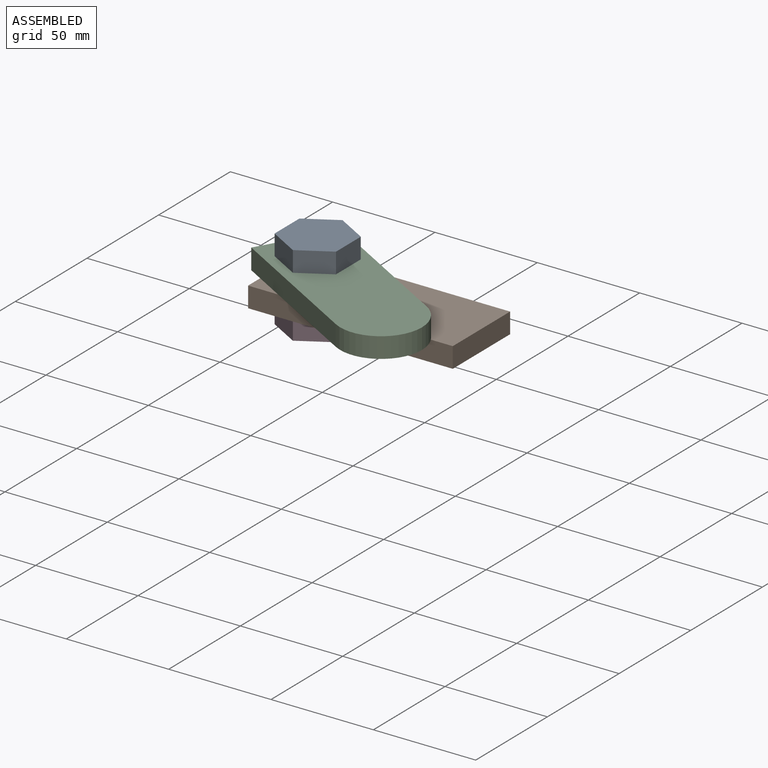
[diagram: assembled view]
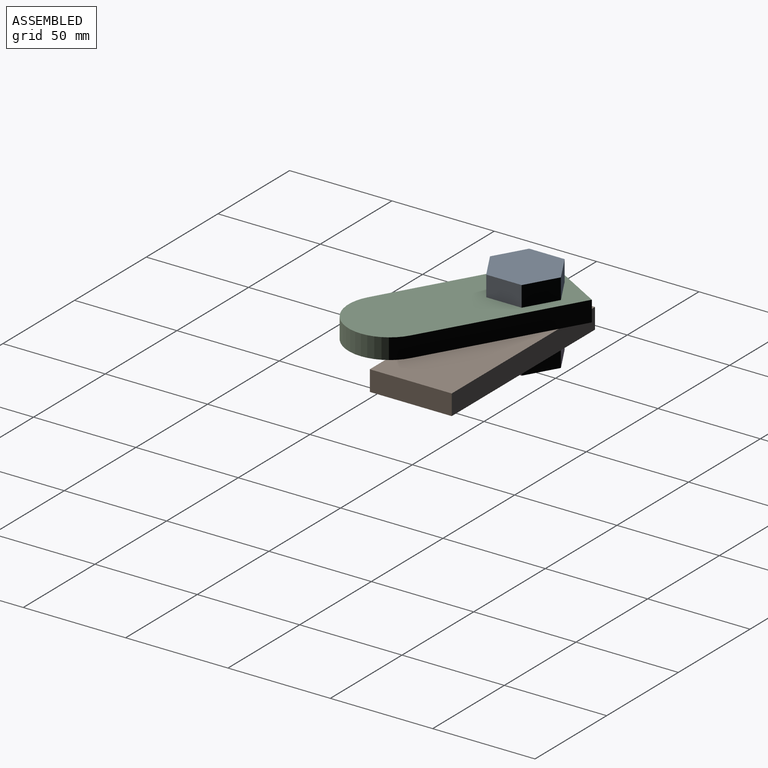
[diagram: assembled view, second angle]
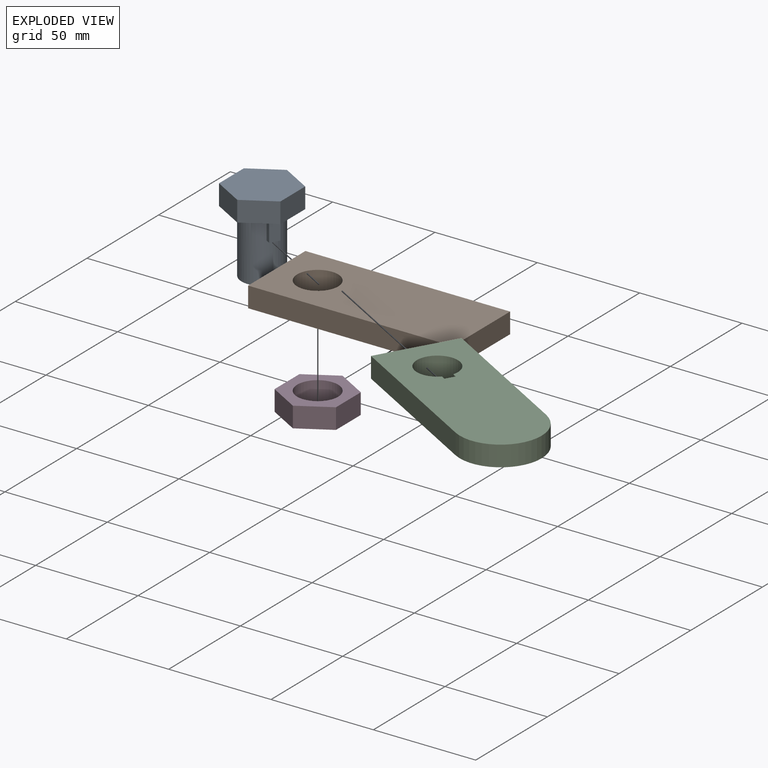
[diagram: exploded view]
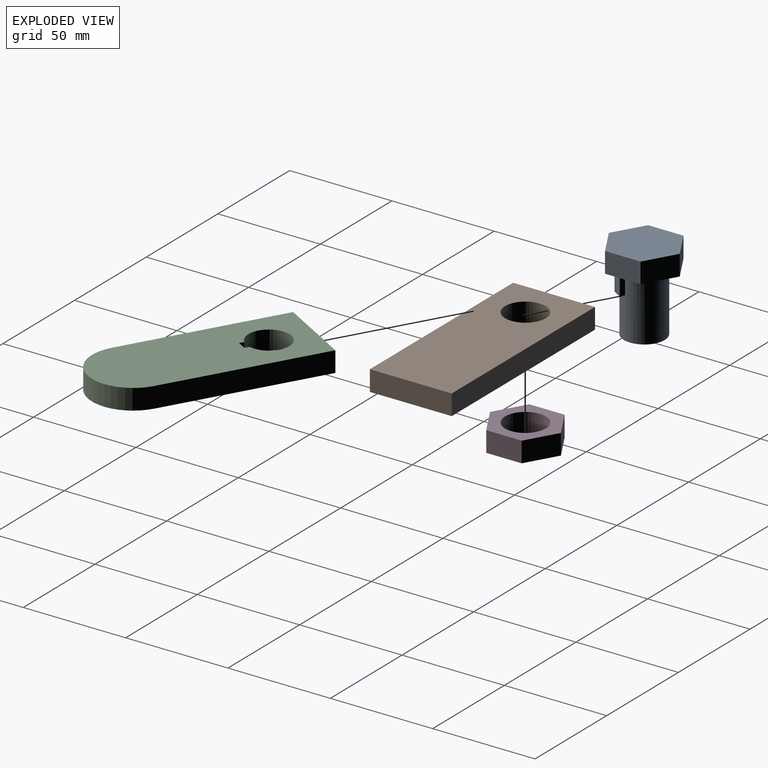
[diagram: exploded view, second angle]
ASSEMBLY  parts=4 mates=3
PART A: 14 faces, bbox 34.6x30x40 mm
  f0: cylinder r=10mm len=30mm, axis (0,0,1), area 1834.4mm2, adj f1,f9,f10,f11,f13
  f1: plane 20x20mm, normal (0,0,-1), area 314.2mm2, adj f0
  f2: plane 15x10mm, normal (0.87,-0.5,0), area 173.2mm2, adj f3,f7,f8,f9
  f3: plane 15x10mm, normal (0.87,0.5,0), area 173.2mm2, adj f2,f4,f8,f9
  f4: plane 17.32x10mm, normal (0,1,0), area 173.2mm2, adj f3,f5,f8,f9
  f5: plane 15x10mm, normal (-0.87,0.5,0), area 173.2mm2, adj f4,f6,f8,f9
  f6: plane 15x10mm, normal (-0.87,-0.5,0), area 173.2mm2, adj f5,f7,f8,f9
  f7: plane 17.32x10mm, normal (0,-1,0), area 173.2mm2, adj f2,f6,f8,f9
  f8: plane 34.64x30mm, normal (0,0,1), area 779.4mm2, adj f2,f3,f4,f5,f6,f7
  f9: plane 34.64x30mm, normal (0,0,-1), area 454.7mm2, adj f0,f2,f3,f4,f5,f6,f7,f10
  f10: plane 10x2.32mm, normal (0,-1,0), area 23.2mm2, adj f0,f9,f12,f13
  f11: plane 10x2.32mm, normal (0,1,0), area 23.2mm2, adj f0,f9,f12,f13
  f12: plane 10x5mm, normal (-1,0,0), area 50mm2, adj f9,f10,f11,f13
  f13: plane 5x2.32mm, normal (0,0,-1), area 10.5mm2, adj f0,f10,f11,f12
PART B: 7 faces, bbox 100x40x10 mm
  f0: plane 40x10mm, normal (-1,0,0), area 400mm2, adj f1,f4,f5,f6
  f1: plane 100x10mm, normal (0,-1,0), area 1000mm2, adj f0,f2,f5,f6
  f2: plane 40x10mm, normal (1,0,0), area 400mm2, adj f1,f4,f5,f6
  f3: cylinder r=10mm len=20mm, axis (0,0,1), area 628.3mm2, adj f5,f6
  f4: plane 100x10mm, normal (0,1,0), area 1000mm2, adj f0,f2,f5,f6
  f5: plane 100x40mm, normal (0,0,-1), area 3685.8mm2, adj f0,f1,f2,f3,f4
  f6: plane 100x40mm, normal (0,0,1), area 3685.8mm2, adj f0,f1,f2,f3,f4
PART C: 10 faces, bbox 100x40x10 mm
  f0: plane 40x10mm, normal (-1,0,0), area 400mm2, adj f1,f7,f8,f9
  f1: plane 80x10mm, normal (0,-1,0), area 800mm2, adj f0,f2,f8,f9
  f2: cylinder r=20mm len=40mm, axis (0,0,1), area 628.3mm2, adj f1,f7,f8,f9
  f3: plane 10x5mm, normal (-1,0,0), area 50mm2, adj f4,f6,f8,f9
  f4: plane 10x2.32mm, normal (0,1,0), area 23.2mm2, adj f3,f5,f8,f9
  f5: cylinder r=10mm len=20mm, axis (0,0,1), area 577.8mm2, adj f4,f6,f8,f9
  f6: plane 10x2.32mm, normal (0,-1,0), area 23.2mm2, adj f3,f5,f8,f9
  f7: plane 80x10mm, normal (0,1,0), area 800mm2, adj f0,f2,f8,f9
  f8: plane 100x40mm, normal (0,0,-1), area 3503.6mm2, adj f0,f1,f2,f3,f4,f5,f6,f7
  f9: plane 100x40mm, normal (0,0,1), area 3503.6mm2, adj f0,f1,f2,f3,f4,f5,f6,f7
PART D: 9 faces, bbox 34.6x30x10 mm
  f0: plane 15x10mm, normal (0.87,-0.5,0), area 173.2mm2, adj f1,f6,f7,f8
  f1: plane 15x10mm, normal (0.87,0.5,0), area 173.2mm2, adj f0,f2,f7,f8
  f2: plane 17.32x10mm, normal (0,1,0), area 173.2mm2, adj f1,f3,f7,f8
  f3: plane 15x10mm, normal (-0.87,0.5,0), area 173.2mm2, adj f2,f4,f7,f8
  f4: plane 15x10mm, normal (-0.87,-0.5,0), area 173.2mm2, adj f3,f6,f7,f8
  f5: cylinder r=10mm len=20mm, axis (0,0,1), area 628.3mm2, adj f7,f8
  f6: plane 17.32x10mm, normal (0,-1,0), area 173.2mm2, adj f0,f4,f7,f8
  f7: plane 34.64x30mm, normal (0,0,-1), area 465.3mm2, adj f0,f1,f2,f3,f4,f5,f6
  f8: plane 34.64x30mm, normal (0,0,1), area 465.3mm2, adj f0,f1,f2,f3,f4,f5,f6
PLACE A rot(axis=(0,0,1),150deg) t=(-87.55,79,149.17)mm
PLACE B t=(-10.7,43.1,139.17)mm fixed
PLACE C rot(axis=(0,0,-1),30deg) t=(-60.93,26.26,149.17)mm
PLACE D rot(axis=(0,0,-1),30deg) t=(-76.79,40.93,129.17)mm
MATE fastened C.f3 <-> A.f12  axis (-0.87,0.5,0) through (-77.15,73,144.17)mm
MATE revolute B.f3 <-> D.f5  axis (0,0,-1) through (-87.55,79,129.17)mm
MATE revolute B.f3 <-> C.f5  axis (0,0,1) through (-87.55,79,139.17)mm
